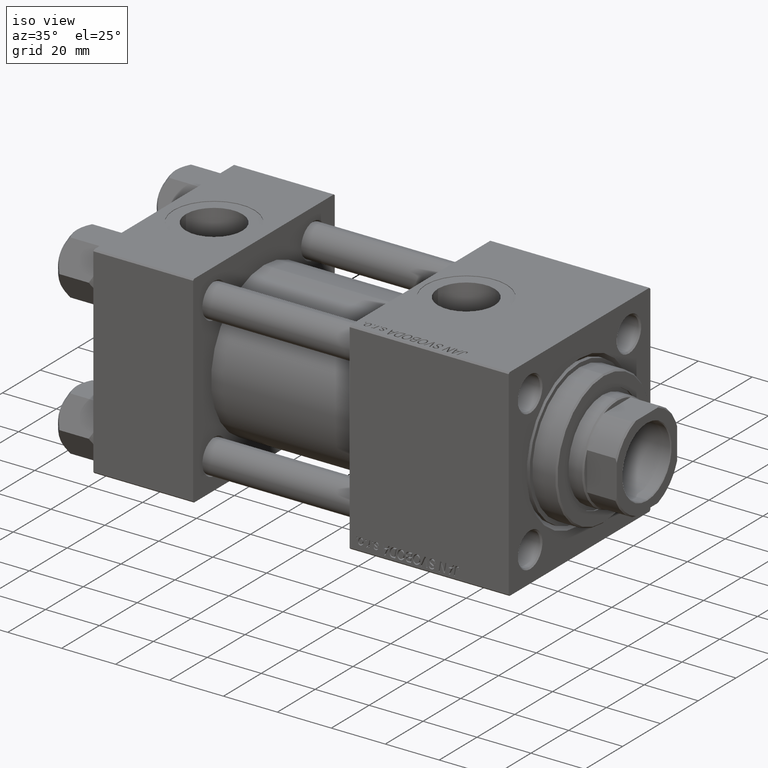
[diagram: clean part render]
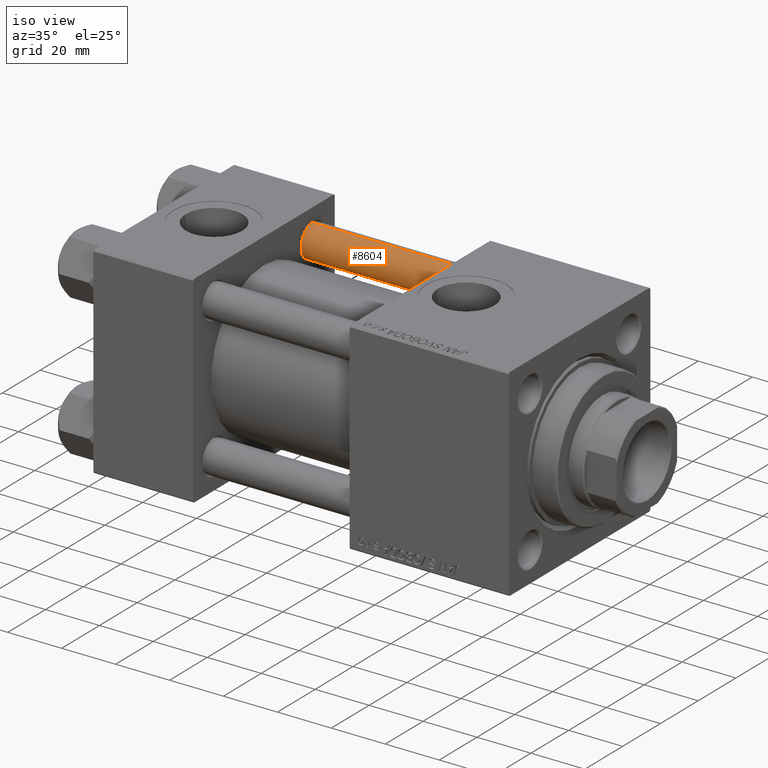
[diagram: same view with one face highlighted and labeled with its STEP entity id]
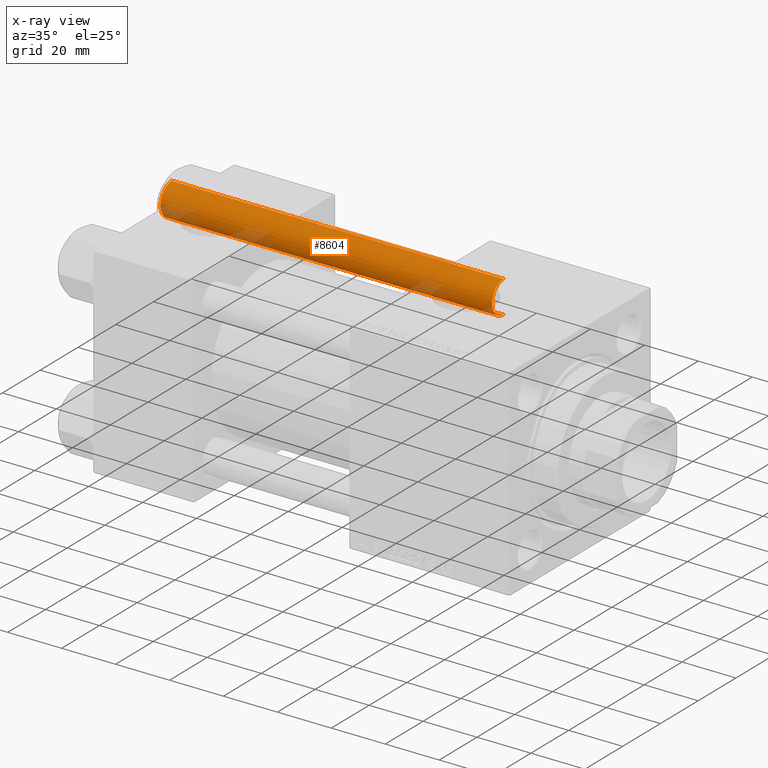
[diagram: x-ray of the same camera — body ghosted, the highlighted face saturated]
A machine part, iso view. The second image highlights one B-rep face of the part: STEP entity #8604.
The next image is the same camera in x-ray: the body ghosted, the highlighted face saturated — about 12% of this face is hidden behind the body in this view.
In plain terms, the highlighted cylindrical surface (edge-blend (fillet) strip) has radius 6 mm, axis along (-1, -0, 0).
Its self-contained STEP definition (entity closure, byte-faithful):
#273 = DIRECTION ( 'NONE',  ( -0.000000000000000000, -0.000000000000000000, -1.000000000000000000 ) ) ;
#1246 = CARTESIAN_POINT ( 'NONE',  ( 0.000000000000000000, 0.000000000000000000, 123.5000000000000426 ) ) ;
#1475 = EDGE_CURVE ( 'NONE', #12680, #14703, #24115, .T. ) ;
#2683 = EDGE_CURVE ( 'NONE', #28533, #12680, #35273, .T. ) ;
#5078 = DIRECTION ( 'NONE',  ( 0.000000000000000000, 0.000000000000000000, -1.000000000000000000 ) ) ;
#7117 = AXIS2_PLACEMENT_3D ( 'NONE', #41296, #29644, #49198 ) ;
#7644 = CARTESIAN_POINT ( 'NONE',  ( -6.000000000000000888, 0.000000000000000000, 124.0000000000000000 ) ) ;
#8604 = ADVANCED_FACE ( 'NONE', ( #21438 ), #37433, .T. ) ;
#12680 = VERTEX_POINT ( 'NONE', #13029 ) ;
#13029 = CARTESIAN_POINT ( 'NONE',  ( -6.000000000000000888, 0.000000000000000000, 0.4999999999999865663 ) ) ;
#13047 = VECTOR ( 'NONE', #25050, 1000.000000000000000 ) ;
#14703 = VERTEX_POINT ( 'NONE', #29025 ) ;
#16980 = DIRECTION ( 'NONE',  ( 1.000000000000000000, 0.000000000000000000, 0.000000000000000000 ) ) ;
#18845 = ORIENTED_EDGE ( 'NONE', *, *, #2683, .T. ) ;
#21438 = FACE_OUTER_BOUND ( 'NONE', #42700, .T. ) ;
#22905 = ORIENTED_EDGE ( 'NONE', *, *, #1475, .T. ) ;
#24115 = CIRCLE ( 'NONE', #7117, 6.000000000000000888 ) ;
#24980 = DIRECTION ( 'NONE',  ( -1.000000000000000000, 0.000000000000000000, 0.000000000000000000 ) ) ;
#25050 = DIRECTION ( 'NONE',  ( -0.000000000000000000, -0.000000000000000000, -1.000000000000000000 ) ) ;
#25746 = DIRECTION ( 'NONE',  ( -0.000000000000000000, -0.000000000000000000, -1.000000000000000000 ) ) ;
#26501 = AXIS2_PLACEMENT_3D ( 'NONE', #1246, #5078, #16980 ) ;
#26749 = AXIS2_PLACEMENT_3D ( 'NONE', #36916, #25746, #24980 ) ;
#28533 = VERTEX_POINT ( 'NONE', #48040 ) ;
#28888 = VERTEX_POINT ( 'NONE', #39351 ) ;
#29025 = CARTESIAN_POINT ( 'NONE',  ( 6.000000000000000888, 7.347880794884120722E-16, 0.4999999999999865663 ) ) ;
#29644 = DIRECTION ( 'NONE',  ( -0.000000000000000000, -0.000000000000000000, 1.000000000000000000 ) ) ;
#29824 = VECTOR ( 'NONE', #273, 1000.000000000000000 ) ;
#31505 = EDGE_CURVE ( 'NONE', #28888, #28533, #44323, .T. ) ;
#34838 = ORIENTED_EDGE ( 'NONE', *, *, #31505, .T. ) ;
#35273 = LINE ( 'NONE', #7644, #29824 ) ;
#36916 = CARTESIAN_POINT ( 'NONE',  ( 0.000000000000000000, 0.000000000000000000, 124.0000000000000000 ) ) ;
#37433 = CYLINDRICAL_SURFACE ( 'NONE', #26749, 6.000000000000000888 ) ;
#39351 = CARTESIAN_POINT ( 'NONE',  ( 6.000000000000000888, 7.347880794884120722E-16, 123.5000000000000426 ) ) ;
#40270 = CARTESIAN_POINT ( 'NONE',  ( 6.000000000000000888, 7.347880794884120722E-16, 124.0000000000000000 ) ) ;
#40525 = LINE ( 'NONE', #40270, #13047 ) ;
#41296 = CARTESIAN_POINT ( 'NONE',  ( 0.000000000000000000, 0.000000000000000000, 0.4999999999999865663 ) ) ;
#42700 = EDGE_LOOP ( 'NONE', ( #45316, #34838, #18845, #22905 ) ) ;
#44267 = EDGE_CURVE ( 'NONE', #28888, #14703, #40525, .T. ) ;
#44323 = CIRCLE ( 'NONE', #26501, 6.000000000000000888 ) ;
#45316 = ORIENTED_EDGE ( 'NONE', *, *, #44267, .F. ) ;
#48040 = CARTESIAN_POINT ( 'NONE',  ( -6.000000000000000888, 0.000000000000000000, 123.5000000000000426 ) ) ;
#49198 = DIRECTION ( 'NONE',  ( 1.000000000000000000, 0.000000000000000000, 0.000000000000000000 ) ) ;